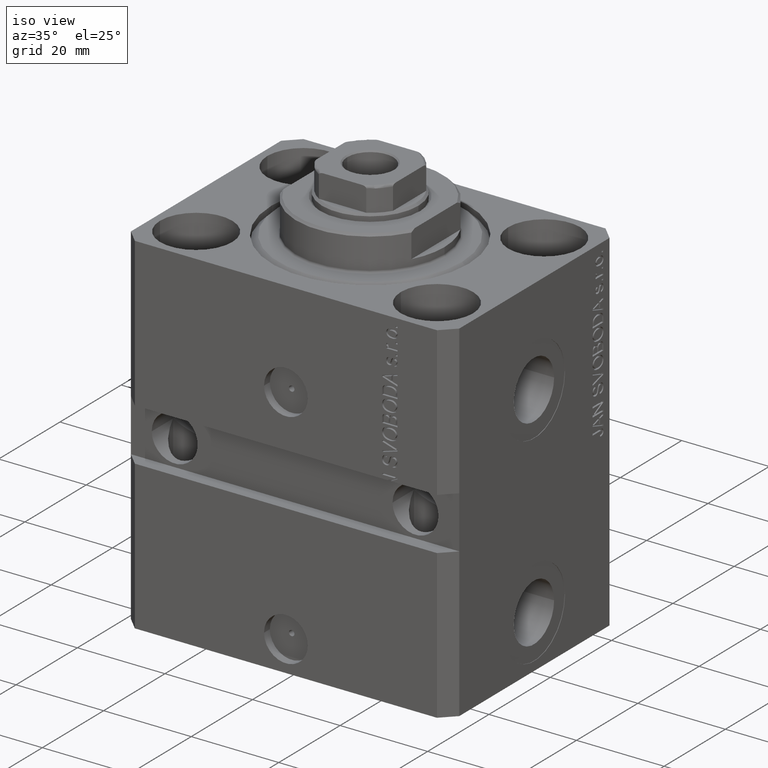
[diagram: clean part render]
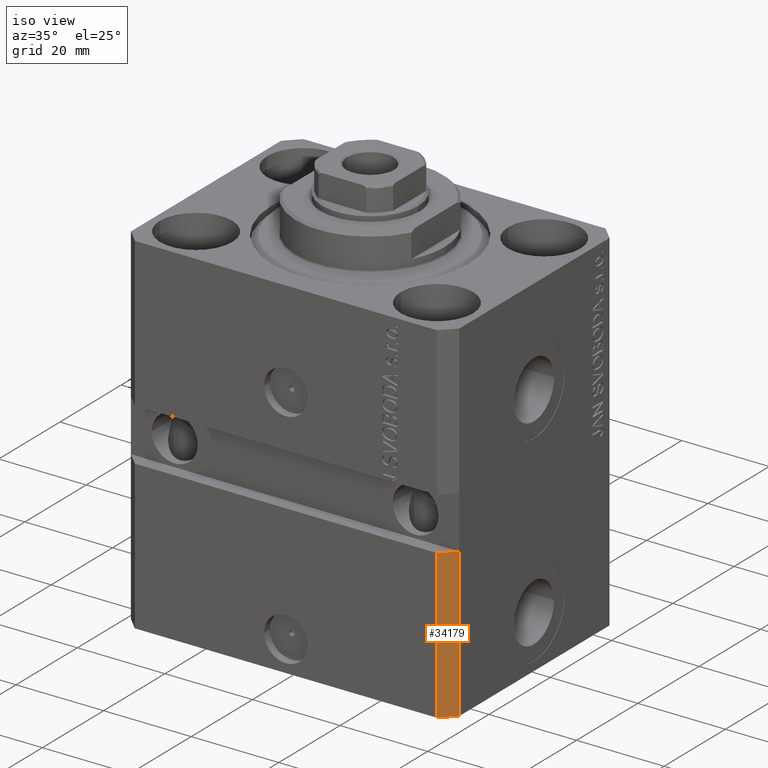
[diagram: same view with one face highlighted and labeled with its STEP entity id]
A machine part, iso view. The second image highlights one B-rep face of the part: STEP entity #34179.
In plain terms, the highlighted planar face has unit normal (0.7071, -0.7071, 0).
Its self-contained STEP definition (entity closure, byte-faithful):
#135 = VECTOR ( 'NONE', #45406, 1000.000000000000000 ) ;
#1989 = CARTESIAN_POINT ( 'NONE',  ( 34.49999999999999289, -27.49999999999999645, -80.00000000000000000 ) ) ;
#2680 = LINE ( 'NONE', #1989, #3090 ) ;
#3090 = VECTOR ( 'NONE', #6474, 1000.000000000000114 ) ;
#4566 = EDGE_CURVE ( 'NONE', #14267, #29378, #14269, .T. ) ;
#5088 = PLANE ( 'NONE',  #39381 ) ;
#6474 = DIRECTION ( 'NONE',  ( 0.7071067811865474617, 0.7071067811865474617, 0.000000000000000000 ) ) ;
#10224 = EDGE_CURVE ( 'NONE', #14267, #13534, #2680, .T. ) ;
#10723 = DIRECTION ( 'NONE',  ( 0.000000000000000000, 0.000000000000000000, 1.000000000000000000 ) ) ;
#12945 = VECTOR ( 'NONE', #25941, 1000.000000000000114 ) ;
#13534 = VERTEX_POINT ( 'NONE', #35712 ) ;
#14267 = VERTEX_POINT ( 'NONE', #25067 ) ;
#14269 = LINE ( 'NONE', #28731, #21785 ) ;
#15713 = EDGE_CURVE ( 'NONE', #29378, #26898, #43695, .T. ) ;
#17106 = EDGE_CURVE ( 'NONE', #13534, #26898, #30960, .T. ) ;
#19528 = CARTESIAN_POINT ( 'NONE',  ( 34.49999999999999289, -27.49999999999999645, -80.00000000000000000 ) ) ;
#20305 = CARTESIAN_POINT ( 'NONE',  ( 37.49999999999999289, -24.49999999999999289, -46.00000000000000000 ) ) ;
#21785 = VECTOR ( 'NONE', #10723, 1000.000000000000000 ) ;
#25067 = CARTESIAN_POINT ( 'NONE',  ( 34.49999999999999289, -27.49999999999999645, -80.00000000000000000 ) ) ;
#25941 = DIRECTION ( 'NONE',  ( 0.7071067811865474617, 0.7071067811865474617, 0.000000000000000000 ) ) ;
#26176 = DIRECTION ( 'NONE',  ( 0.7071067811865474617, 0.7071067811865474617, 0.000000000000000000 ) ) ;
#26898 = VERTEX_POINT ( 'NONE', #20305 ) ;
#28731 = CARTESIAN_POINT ( 'NONE',  ( 34.49999999999999289, -27.49999999999999645, -80.00000000000000000 ) ) ;
#29378 = VERTEX_POINT ( 'NONE', #38989 ) ;
#30594 = ORIENTED_EDGE ( 'NONE', *, *, #17106, .T. ) ;
#30960 = LINE ( 'NONE', #34735, #135 ) ;
#34179 = ADVANCED_FACE ( 'NONE', ( #37550 ), #5088, .T. ) ;
#34735 = CARTESIAN_POINT ( 'NONE',  ( 37.49999999999999289, -24.50000000000000000, -80.00000000000000000 ) ) ;
#35712 = CARTESIAN_POINT ( 'NONE',  ( 37.49999999999999289, -24.50000000000000000, -80.00000000000000000 ) ) ;
#37550 = FACE_OUTER_BOUND ( 'NONE', #42549, .T. ) ;
#38989 = CARTESIAN_POINT ( 'NONE',  ( 34.49999999999999289, -27.49999999999999289, -46.00000000000000000 ) ) ;
#39381 = AXIS2_PLACEMENT_3D ( 'NONE', #19528, #40606, #26176 ) ;
#40589 = CARTESIAN_POINT ( 'NONE',  ( 34.49999999999999289, -27.49999999999999645, -46.00000000000000000 ) ) ;
#40606 = DIRECTION ( 'NONE',  ( 0.7071067811865475727, -0.7071067811865475727, 0.000000000000000000 ) ) ;
#40752 = ORIENTED_EDGE ( 'NONE', *, *, #4566, .F. ) ;
#42549 = EDGE_LOOP ( 'NONE', ( #44325, #40752, #43817, #30594 ) ) ;
#43695 = LINE ( 'NONE', #40589, #12945 ) ;
#43817 = ORIENTED_EDGE ( 'NONE', *, *, #10224, .T. ) ;
#44325 = ORIENTED_EDGE ( 'NONE', *, *, #15713, .F. ) ;
#45406 = DIRECTION ( 'NONE',  ( 0.000000000000000000, 0.000000000000000000, 1.000000000000000000 ) ) ;